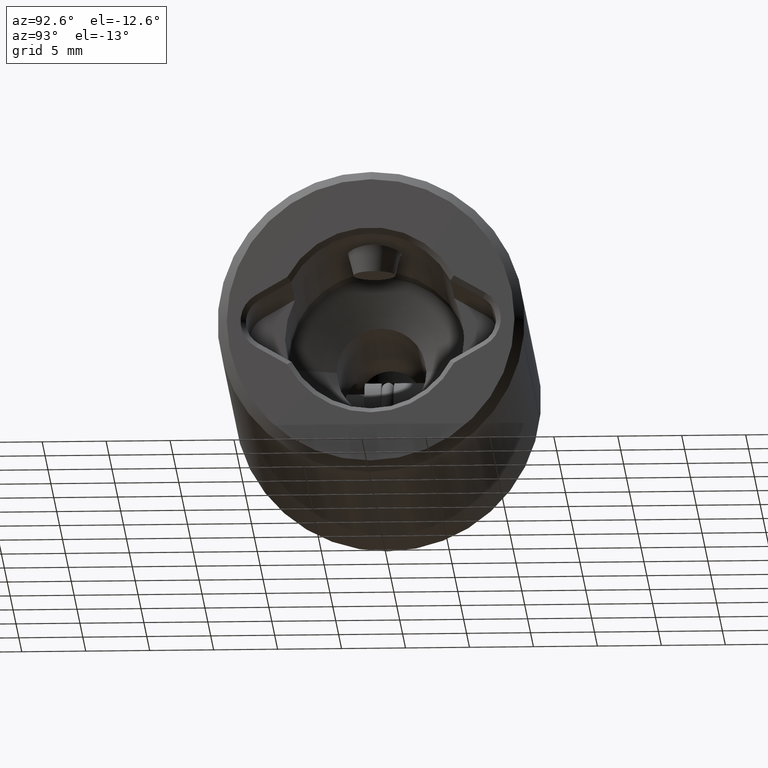
[diagram: clean part render]
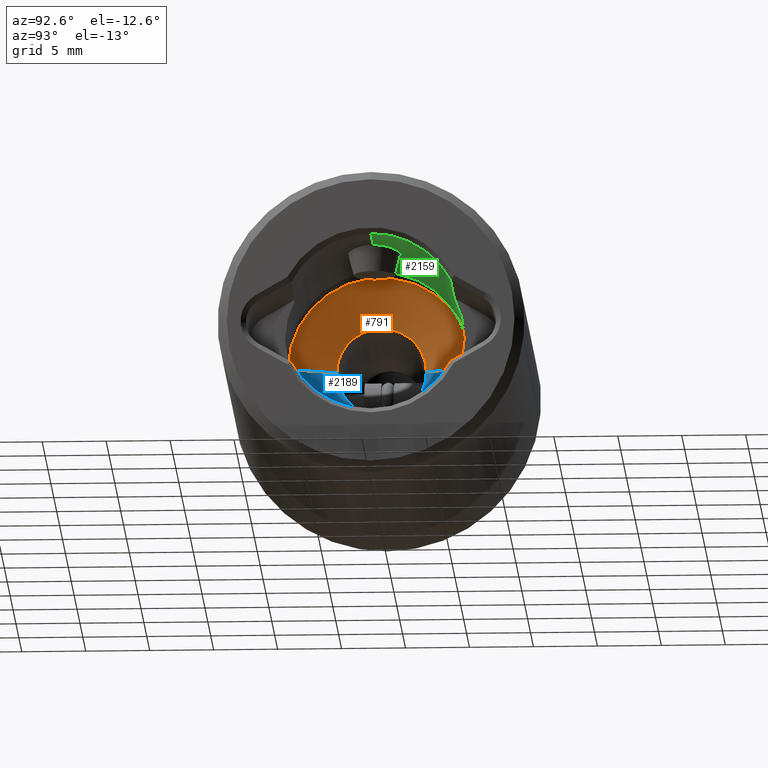
[diagram: same view with three faces highlighted in distinct colors, each labeled with its STEP entity id]
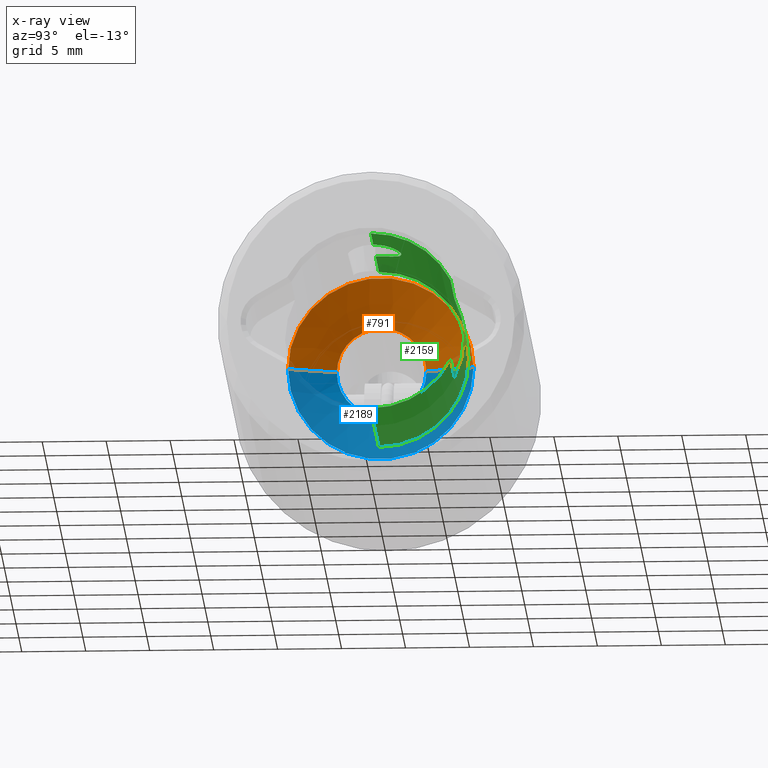
[diagram: x-ray of the same camera — body ghosted, the three highlighted faces saturated]
A machine part, auxiliary view with three faces highlighted in distinct colors.
The next image is the same camera in x-ray (body ghosted, the three faces saturated) — at least one of them is partly hidden behind the body in this view.
Their STEP definitions:

[orange] entity #791 — the highlighted conical surface has half-angle 70 deg.
#121 = VERTEX_POINT ( 'NONE', #3998 ) ;
#237 = EDGE_CURVE ( 'NONE', #1329, #2908, #3725, .T. ) ;
#268 = EDGE_CURVE ( 'NONE', #991, #275, #1883, .T. ) ;
#275 = VERTEX_POINT ( 'NONE', #986 ) ;
#324 = LINE ( 'NONE', #1284, #1061 ) ;
#358 = CARTESIAN_POINT ( 'NONE',  ( 0.0000000000000000000, 7.249999999999998200, 17.50000000000000000 ) ) ;
#623 = DIRECTION ( 'NONE',  ( 0.0000000000000000000, -4.148317104405457400E-017, -1.000000000000000000 ) ) ;
#791 = ADVANCED_FACE ( 'NONE', ( #930 ), #3293, .F. ) ;
#899 = DIRECTION ( 'NONE',  ( 0.0000000000000000000, -1.000000000000000000, 0.0000000000000000000 ) ) ;
#914 = DIRECTION ( 'NONE',  ( 0.0000000000000000000, 4.148317104405457400E-017, 1.000000000000000000 ) ) ;
#925 = DIRECTION ( 'NONE',  ( 1.150791560227852700E-016, -0.9396926207859104300, -0.3420201433256629400 ) ) ;
#930 = FACE_OUTER_BOUND ( 'NONE', #3781, .T. ) ;
#931 = CARTESIAN_POINT ( 'NONE',  ( 0.0000000000000000000, -2.136345753203781900E-015, 17.50000000000000000 ) ) ;
#986 = CARTESIAN_POINT ( 'NONE',  ( 0.0000000000000000000, 7.249999999999999100, 17.50000000000000000 ) ) ;
#991 = VERTEX_POINT ( 'NONE', #1886 ) ;
#1061 = VECTOR ( 'NONE', #925, 1000.000000000000200 ) ;
#1110 = VECTOR ( 'NONE', #2980, 1000.000000000000200 ) ;
#1279 = DIRECTION ( 'NONE',  ( 0.0000000000000000000, 1.000000000000000000, 0.0000000000000000000 ) ) ;
#1284 = CARTESIAN_POINT ( 'NONE',  ( 8.878689293818310100E-016, -7.250000000000001800, 17.50000000000000000 ) ) ;
#1320 = DIRECTION ( 'NONE',  ( 0.0000000000000000000, -4.148317104405457400E-017, -1.000000000000000000 ) ) ;
#1329 = VERTEX_POINT ( 'NONE', #3953 ) ;
#1338 = EDGE_CURVE ( 'NONE', #121, #275, #2025, .T. ) ;
#1349 = CARTESIAN_POINT ( 'NONE',  ( 0.0000000000000000000, -2.079725855142497400E-015, 18.86488837849823600 ) ) ;
#1351 = AXIS2_PLACEMENT_3D ( 'NONE', #2615, #623, #2950 ) ;
#1855 = DIRECTION ( 'NONE',  ( 0.0000000000000000000, -4.148317104405457400E-017, -1.000000000000000000 ) ) ;
#1859 = AXIS2_PLACEMENT_3D ( 'NONE', #2543, #1855, #2863 ) ;
#1883 = CIRCLE ( 'NONE', #3786, 7.250000000000000000 ) ;
#1886 = CARTESIAN_POINT ( 'NONE',  ( 8.878689293818308100E-016, -7.250000000000000900, 17.50000000000000000 ) ) ;
#2025 = LINE ( 'NONE', #358, #1110 ) ;
#2543 = CARTESIAN_POINT ( 'NONE',  ( 0.0000000000000000000, -2.136345753203781900E-015, 17.50000000000000000 ) ) ;
#2563 = EDGE_CURVE ( 'NONE', #121, #1329, #3237, .T. ) ;
#2615 = CARTESIAN_POINT ( 'NONE',  ( 0.0000000000000000000, -2.079725855142497400E-015, 18.86488837849823600 ) ) ;
#2863 = DIRECTION ( 'NONE',  ( 0.0000000000000000000, 1.000000000000000000, 0.0000000000000000000 ) ) ;
#2886 = ORIENTED_EDGE ( 'NONE', *, *, #1338, .T. ) ;
#2908 = VERTEX_POINT ( 'NONE', #3333 ) ;
#2939 = AXIS2_PLACEMENT_3D ( 'NONE', #1349, #1320, #1279 ) ;
#2950 = DIRECTION ( 'NONE',  ( 0.0000000000000000000, 1.000000000000000000, 0.0000000000000000000 ) ) ;
#2980 = DIRECTION ( 'NONE',  ( 0.0000000000000000000, 0.9396926207859104300, -0.3420201433256630500 ) ) ;
#3041 = ORIENTED_EDGE ( 'NONE', *, *, #237, .F. ) ;
#3232 = ORIENTED_EDGE ( 'NONE', *, *, #2563, .F. ) ;
#3237 = CIRCLE ( 'NONE', #1351, 3.500000000000000000 ) ;
#3293 = CONICAL_SURFACE ( 'NONE', #1859, 7.250000000000000000, 1.221730476396036800 ) ;
#3333 = CARTESIAN_POINT ( 'NONE',  ( 6.582476545417023100E-016, -3.500000000000002200, 18.86488837849823600 ) ) ;
#3541 = EDGE_CURVE ( 'NONE', #2908, #991, #324, .T. ) ;
#3617 = ORIENTED_EDGE ( 'NONE', *, *, #3541, .F. ) ;
#3725 = CIRCLE ( 'NONE', #2939, 3.500000000000000000 ) ;
#3781 = EDGE_LOOP ( 'NONE', ( #3617, #3041, #3232, #2886, #4113 ) ) ;
#3786 = AXIS2_PLACEMENT_3D ( 'NONE', #931, #914, #899 ) ;
#3953 = CARTESIAN_POINT ( 'NONE',  ( 3.500000000000000000, 0.0000000000000000000, 18.86488837849823600 ) ) ;
#3998 = CARTESIAN_POINT ( 'NONE',  ( 0.0000000000000000000, 3.499999999999997800, 18.86488837849823600 ) ) ;
#4113 = ORIENTED_EDGE ( 'NONE', *, *, #268, .F. ) ;

[blue] entity #2189 — the highlighted conical surface has half-angle 70 deg.
#100 = ORIENTED_EDGE ( 'NONE', *, *, #2733, .F. ) ;
#121 = VERTEX_POINT ( 'NONE', #3998 ) ;
#125 = CIRCLE ( 'NONE', #463, 3.500000000000000000 ) ;
#210 = DIRECTION ( 'NONE',  ( 0.0000000000000000000, 1.000000000000000000, 0.0000000000000000000 ) ) ;
#252 = DIRECTION ( 'NONE',  ( 0.0000000000000000000, -4.148317104405457400E-017, -1.000000000000000000 ) ) ;
#275 = VERTEX_POINT ( 'NONE', #986 ) ;
#324 = LINE ( 'NONE', #1284, #1061 ) ;
#358 = CARTESIAN_POINT ( 'NONE',  ( 0.0000000000000000000, 7.249999999999998200, 17.50000000000000000 ) ) ;
#463 = AXIS2_PLACEMENT_3D ( 'NONE', #860, #252, #210 ) ;
#809 = DIRECTION ( 'NONE',  ( 0.0000000000000000000, -4.148317104405457400E-017, -1.000000000000000000 ) ) ;
#823 = CONICAL_SURFACE ( 'NONE', #3519, 7.250000000000000000, 1.221730476396036800 ) ;
#860 = CARTESIAN_POINT ( 'NONE',  ( 0.0000000000000000000, -2.079725855142497400E-015, 18.86488837849823600 ) ) ;
#925 = DIRECTION ( 'NONE',  ( 1.150791560227852700E-016, -0.9396926207859104300, -0.3420201433256629400 ) ) ;
#936 = FACE_OUTER_BOUND ( 'NONE', #2819, .T. ) ;
#956 = CIRCLE ( 'NONE', #3978, 3.500000000000000000 ) ;
#986 = CARTESIAN_POINT ( 'NONE',  ( 0.0000000000000000000, 7.249999999999999100, 17.50000000000000000 ) ) ;
#991 = VERTEX_POINT ( 'NONE', #1886 ) ;
#1028 = DIRECTION ( 'NONE',  ( 0.0000000000000000000, -4.148317104405457400E-017, -1.000000000000000000 ) ) ;
#1059 = EDGE_CURVE ( 'NONE', #3406, #121, #125, .T. ) ;
#1061 = VECTOR ( 'NONE', #925, 1000.000000000000200 ) ;
#1110 = VECTOR ( 'NONE', #2980, 1000.000000000000200 ) ;
#1284 = CARTESIAN_POINT ( 'NONE',  ( 8.878689293818310100E-016, -7.250000000000001800, 17.50000000000000000 ) ) ;
#1338 = EDGE_CURVE ( 'NONE', #121, #275, #2025, .T. ) ;
#1386 = DIRECTION ( 'NONE',  ( 0.0000000000000000000, 1.000000000000000000, 0.0000000000000000000 ) ) ;
#1536 = CARTESIAN_POINT ( 'NONE',  ( -3.500000000000000000, 4.286263797015734600E-016, 18.86488837849823600 ) ) ;
#1545 = EDGE_CURVE ( 'NONE', #2908, #3406, #956, .T. ) ;
#1583 = CARTESIAN_POINT ( 'NONE',  ( 0.0000000000000000000, -2.136345753203781900E-015, 17.50000000000000000 ) ) ;
#1886 = CARTESIAN_POINT ( 'NONE',  ( 8.878689293818308100E-016, -7.250000000000000900, 17.50000000000000000 ) ) ;
#1907 = DIRECTION ( 'NONE',  ( 0.0000000000000000000, -1.000000000000000000, 0.0000000000000000000 ) ) ;
#2025 = LINE ( 'NONE', #358, #1110 ) ;
#2189 = ADVANCED_FACE ( 'NONE', ( #936 ), #823, .F. ) ;
#2247 = AXIS2_PLACEMENT_3D ( 'NONE', #1583, #3869, #1907 ) ;
#2371 = ORIENTED_EDGE ( 'NONE', *, *, #1059, .F. ) ;
#2733 = EDGE_CURVE ( 'NONE', #275, #991, #3131, .T. ) ;
#2752 = ORIENTED_EDGE ( 'NONE', *, *, #1338, .F. ) ;
#2815 = CARTESIAN_POINT ( 'NONE',  ( 0.0000000000000000000, -2.079725855142497400E-015, 18.86488837849823600 ) ) ;
#2819 = EDGE_LOOP ( 'NONE', ( #3836, #3291, #100, #2752, #2371 ) ) ;
#2908 = VERTEX_POINT ( 'NONE', #3333 ) ;
#2980 = DIRECTION ( 'NONE',  ( 0.0000000000000000000, 0.9396926207859104300, -0.3420201433256630500 ) ) ;
#3131 = CIRCLE ( 'NONE', #2247, 7.250000000000000000 ) ;
#3153 = DIRECTION ( 'NONE',  ( 0.0000000000000000000, 1.000000000000000000, 0.0000000000000000000 ) ) ;
#3291 = ORIENTED_EDGE ( 'NONE', *, *, #3541, .T. ) ;
#3333 = CARTESIAN_POINT ( 'NONE',  ( 6.582476545417023100E-016, -3.500000000000002200, 18.86488837849823600 ) ) ;
#3406 = VERTEX_POINT ( 'NONE', #1536 ) ;
#3519 = AXIS2_PLACEMENT_3D ( 'NONE', #3679, #1028, #1386 ) ;
#3541 = EDGE_CURVE ( 'NONE', #2908, #991, #324, .T. ) ;
#3679 = CARTESIAN_POINT ( 'NONE',  ( 0.0000000000000000000, -2.136345753203781900E-015, 17.50000000000000000 ) ) ;
#3836 = ORIENTED_EDGE ( 'NONE', *, *, #1545, .F. ) ;
#3869 = DIRECTION ( 'NONE',  ( 0.0000000000000000000, 4.148317104405457400E-017, 1.000000000000000000 ) ) ;
#3978 = AXIS2_PLACEMENT_3D ( 'NONE', #2815, #809, #3153 ) ;
#3998 = CARTESIAN_POINT ( 'NONE',  ( 0.0000000000000000000, 3.499999999999997800, 18.86488837849823600 ) ) ;

[green] entity #2159 — the highlighted cylindrical surface (partial cylindrical patch) has radius 7 mm, axis along (1, 0, 0).
#23 = EDGE_CURVE ( 'NONE', #3122, #754, #1942, .T. ) ;
#37 = LINE ( 'NONE', #3896, #1575 ) ;
#86 = CYLINDRICAL_SURFACE ( 'NONE', #3731, 7.000000000000000000 ) ;
#91 = CARTESIAN_POINT ( 'NONE',  ( 7.000000000000001800, 0.1396186699017871700, 4.450000000000001100 ) ) ;
#99 = CARTESIAN_POINT ( 'NONE',  ( 6.921089821993092500, 1.054442023925435100, 4.728758008423139500 ) ) ;
#113 = CARTESIAN_POINT ( 'NONE',  ( 6.756624778875123900, 1.833088423576224100, 7.611227829950864900 ) ) ;
#140 = CARTESIAN_POINT ( 'NONE',  ( -7.000000000000000000, 0.0000000000000000000, 0.4000000000000010200 ) ) ;
#180 = FACE_OUTER_BOUND ( 'NONE', #4124, .T. ) ;
#211 = CARTESIAN_POINT ( 'NONE',  ( 0.0000000000000000000, 0.0000000000000000000, 0.4000000000000010200 ) ) ;
#215 = CIRCLE ( 'NONE', #3903, 7.000000000000000000 ) ;
#279 = CARTESIAN_POINT ( 'NONE',  ( 7.000000000000000000, 8.572527594031473200E-016, 17.50000000000000000 ) ) ;
#379 = EDGE_CURVE ( 'NONE', #4146, #3716, #1780, .T. ) ;
#424 = CARTESIAN_POINT ( 'NONE',  ( 0.0000000000000000000, -2.271166059096959500E-015, 14.24999999999999800 ) ) ;
#427 = CARTESIAN_POINT ( 'NONE',  ( 7.000000000000000000, 1.203327826047149900E-016, 4.450000000000001100 ) ) ;
#439 = CARTESIAN_POINT ( 'NONE',  ( 6.861461030826726300, 1.389261821100216100, 4.969340607373350600 ) ) ;
#454 = CARTESIAN_POINT ( 'NONE',  ( 6.861829006825477300, 1.387495214371584600, 8.132289558008780600 ) ) ;
#547 = DIRECTION ( 'NONE',  ( 1.000000000000000000, 0.0000000000000000000, 0.0000000000000000000 ) ) ;
#552 = CARTESIAN_POINT ( 'NONE',  ( 7.000000000000000000, 8.572527594031473200E-016, 17.50000000000000000 ) ) ;
#559 = CIRCLE ( 'NONE', #1700, 7.000000000000000000 ) ;
#611 = DIRECTION ( 'NONE',  ( 0.0000000000000000000, 0.0000000000000000000, -1.000000000000000000 ) ) ;
#635 = ORIENTED_EDGE ( 'NONE', *, *, #858, .T. ) ;
#697 = ORIENTED_EDGE ( 'NONE', *, *, #1608, .T. ) ;
#707 = DIRECTION ( 'NONE',  ( 0.0000000000000000000, 0.0000000000000000000, -1.000000000000000000 ) ) ;
#721 = DIRECTION ( 'NONE',  ( -0.0000000000000000000, -4.148317104405457400E-017, -1.000000000000000000 ) ) ;
#732 = DIRECTION ( 'NONE',  ( -8.881784197001252300E-016, -1.000000000000000000, 0.0000000000000000000 ) ) ;
#744 = CARTESIAN_POINT ( 'NONE',  ( 6.756358450323677500, 1.833999244569565200, 5.491158574040686500 ) ) ;
#747 = CARTESIAN_POINT ( 'NONE',  ( 6.920941585415814500, 1.055372899150519100, 8.370670769413999700 ) ) ;
#754 = VERTEX_POINT ( 'NONE', #1528 ) ;
#841 = DIRECTION ( 'NONE',  ( 0.0000000000000000000, 0.0000000000000000000, -1.000000000000000000 ) ) ;
#858 = EDGE_CURVE ( 'NONE', #3122, #2310, #1417, .T. ) ;
#877 = VECTOR ( 'NONE', #1253, 1000.000000000000000 ) ;
#943 = CARTESIAN_POINT ( 'NONE',  ( -3.205490311578183900, 6.222927917176801500, 17.50000000000000000 ) ) ;
#947 = CARTESIAN_POINT ( 'NONE',  ( -3.205490311578184800, 6.222927917176799700, 6.899999999999999500 ) ) ;
#1009 = AXIS2_PLACEMENT_3D ( 'NONE', #1098, #721, #3835 ) ;
#1070 = CARTESIAN_POINT ( 'NONE',  ( 6.698580547748195000, 2.032196730578194300, 6.002883975917211700 ) ) ;
#1075 = VERTEX_POINT ( 'NONE', #1869 ) ;
#1082 = CARTESIAN_POINT ( 'NONE',  ( 6.968135792543013600, 0.6792063117896762800, 8.541850286279567300 ) ) ;
#1090 = EDGE_CURVE ( 'NONE', #2995, #3397, #3722, .T. ) ;
#1098 = CARTESIAN_POINT ( 'NONE',  ( 0.0000000000000000000, -2.271166059096959500E-015, 14.24999999999999800 ) ) ;
#1173 = DIRECTION ( 'NONE',  ( -0.0000000000000000000, -0.0000000000000000000, -1.000000000000000000 ) ) ;
#1191 = CARTESIAN_POINT ( 'NONE',  ( 7.000000000000000000, 8.572339082806839800E-016, 8.649999999999998600 ) ) ;
#1205 = DIRECTION ( 'NONE',  ( 0.0000000000000000000, 0.0000000000000000000, -1.000000000000000000 ) ) ;
#1234 = VERTEX_POINT ( 'NONE', #947 ) ;
#1253 = DIRECTION ( 'NONE',  ( 0.0000000000000000000, 0.0000000000000000000, -1.000000000000000000 ) ) ;
#1300 = DIRECTION ( 'NONE',  ( -0.0000000000000000000, -0.0000000000000000000, 1.000000000000000000 ) ) ;
#1417 = LINE ( 'NONE', #3206, #3935 ) ;
#1428 = CARTESIAN_POINT ( 'NONE',  ( 6.677594381981389700, 2.099936492880630600, 6.411163498204289500 ) ) ;
#1436 = CARTESIAN_POINT ( 'NONE',  ( 6.995839517209377700, 0.2769281027931637700, 8.636251401930765700 ) ) ;
#1443 = ORIENTED_EDGE ( 'NONE', *, *, #1090, .F. ) ;
#1491 = CARTESIAN_POINT ( 'NONE',  ( 7.000000000000000000, 1.203327826047149900E-016, 4.450000000000001100 ) ) ;
#1513 = VERTEX_POINT ( 'NONE', #2787 ) ;
#1528 = CARTESIAN_POINT ( 'NONE',  ( 8.725608443924891100E-016, 6.999999999999997300, 14.24999999999999800 ) ) ;
#1563 = CARTESIAN_POINT ( 'NONE',  ( 0.0000000000000000000, 0.0000000000000000000, 6.899999999999999500 ) ) ;
#1575 = VECTOR ( 'NONE', #611, 1000.000000000000000 ) ;
#1604 = CIRCLE ( 'NONE', #3488, 7.000000000000000000 ) ;
#1608 = EDGE_CURVE ( 'NONE', #1075, #3716, #559, .T. ) ;
#1700 = AXIS2_PLACEMENT_3D ( 'NONE', #3179, #1173, #3493 ) ;
#1710 = CIRCLE ( 'NONE', #3118, 7.000000000000000000 ) ;
#1742 = ORIENTED_EDGE ( 'NONE', *, *, #2233, .T. ) ;
#1747 = CARTESIAN_POINT ( 'NONE',  ( 6.979957106523280600, 0.5462817998686548800, 4.517645823486415900 ) ) ;
#1759 = CARTESIAN_POINT ( 'NONE',  ( 6.681958156876654600, 2.086200852298722100, 6.826989819433118900 ) ) ;
#1770 = CARTESIAN_POINT ( 'NONE',  ( 7.000000000000000000, 8.572339082806839800E-016, 8.649999999999998600 ) ) ;
#1780 = LINE ( 'NONE', #279, #877 ) ;
#1869 = CARTESIAN_POINT ( 'NONE',  ( 3.205490311578184300, 6.222927917176801500, 0.3999999999999975800 ) ) ;
#1895 = DIRECTION ( 'NONE',  ( -1.000000000000000000, -1.776356839400250500E-015, 0.0000000000000000000 ) ) ;
#1942 = CIRCLE ( 'NONE', #1009, 7.000000000000000000 ) ;
#2083 = CARTESIAN_POINT ( 'NONE',  ( 6.938571942145756600, 0.9341117162047103400, 4.664168989201591800 ) ) ;
#2088 = ORIENTED_EDGE ( 'NONE', *, *, #3388, .T. ) ;
#2098 = CARTESIAN_POINT ( 'NONE',  ( 6.710742842758151000, 1.992229502632753000, 7.228325900852661700 ) ) ;
#2159 = ADVANCED_FACE ( 'NONE', ( #180 ), #86, .F. ) ;
#2233 = EDGE_CURVE ( 'NONE', #4146, #3397, #3800, .T. ) ;
#2310 = VERTEX_POINT ( 'NONE', #140 ) ;
#2419 = CARTESIAN_POINT ( 'NONE',  ( 6.882547794946126500, 1.282134219260443200, 4.881197370117058100 ) ) ;
#2426 = CARTESIAN_POINT ( 'NONE',  ( 6.798720341831535800, 1.678321443832560900, 7.841653975459934100 ) ) ;
#2520 = DIRECTION ( 'NONE',  ( -0.0000000000000000000, -0.0000000000000000000, -1.000000000000000000 ) ) ;
#2584 = EDGE_CURVE ( 'NONE', #2776, #1075, #37, .T. ) ;
#2712 = CARTESIAN_POINT ( 'NONE',  ( 0.0000000000000000000, 0.0000000000000000000, 17.50000000000000000 ) ) ;
#2739 = DIRECTION ( 'NONE',  ( -0.0000000000000000000, -4.148317104405457400E-017, -1.000000000000000000 ) ) ;
#2750 = CARTESIAN_POINT ( 'NONE',  ( 6.798772840648841700, 1.677936650096603500, 5.258234274132974000 ) ) ;
#2760 = ORIENTED_EDGE ( 'NONE', *, *, #3949, .F. ) ;
#2765 = CARTESIAN_POINT ( 'NONE',  ( 6.882508658577497100, 1.282310005265935300, 8.218632690934352800 ) ) ;
#2776 = VERTEX_POINT ( 'NONE', #3267 ) ;
#2787 = CARTESIAN_POINT ( 'NONE',  ( -3.205490311578183900, 6.222927917176801500, 0.3999999999999975800 ) ) ;
#2862 = ORIENTED_EDGE ( 'NONE', *, *, #3047, .F. ) ;
#2868 = CARTESIAN_POINT ( 'NONE',  ( 7.000000000000000000, 8.572527594031473200E-016, 14.24999999999999800 ) ) ;
#2919 = ORIENTED_EDGE ( 'NONE', *, *, #379, .F. ) ;
#2977 = ORIENTED_EDGE ( 'NONE', *, *, #23, .F. ) ;
#2995 = VERTEX_POINT ( 'NONE', #2868 ) ;
#3043 = DIRECTION ( 'NONE',  ( -1.000000000000000000, 0.0000000000000000000, 0.0000000000000000000 ) ) ;
#3047 = EDGE_CURVE ( 'NONE', #2776, #1234, #215, .T. ) ;
#3081 = CARTESIAN_POINT ( 'NONE',  ( 6.710971334777095600, 1.991443428366877800, 5.869685609282962300 ) ) ;
#3094 = CARTESIAN_POINT ( 'NONE',  ( 6.938798960566544800, 0.9323661416710769000, 8.436658992714987100 ) ) ;
#3106 = VECTOR ( 'NONE', #1300, 1000.000000000000000 ) ;
#3118 = AXIS2_PLACEMENT_3D ( 'NONE', #424, #2739, #732 ) ;
#3122 = VERTEX_POINT ( 'NONE', #3664 ) ;
#3179 = CARTESIAN_POINT ( 'NONE',  ( 0.0000000000000000000, 0.0000000000000000000, 0.4000000000000010200 ) ) ;
#3206 = CARTESIAN_POINT ( 'NONE',  ( -7.000000000000000000, 0.0000000000000000000, 17.50000000000000000 ) ) ;
#3242 = CARTESIAN_POINT ( 'NONE',  ( 7.000000000000000000, 8.572527594031473200E-016, 0.4000000000000010200 ) ) ;
#3267 = CARTESIAN_POINT ( 'NONE',  ( 3.205490311578185200, 6.222927917176801500, 6.899999999999999500 ) ) ;
#3388 = EDGE_CURVE ( 'NONE', #2310, #1513, #1604, .T. ) ;
#3397 = VERTEX_POINT ( 'NONE', #1191 ) ;
#3402 = CARTESIAN_POINT ( 'NONE',  ( 6.681887838270702300, 2.086427526470382400, 6.274355895460205400 ) ) ;
#3416 = CARTESIAN_POINT ( 'NONE',  ( 6.979824400763116700, 0.5481888900522657900, 8.581901332987888200 ) ) ;
#3425 = VECTOR ( 'NONE', #841, 1000.000000000000000 ) ;
#3488 = AXIS2_PLACEMENT_3D ( 'NONE', #211, #2520, #547 ) ;
#3493 = DIRECTION ( 'NONE',  ( 1.000000000000000000, -8.881784197001252300E-016, 0.0000000000000000000 ) ) ;
#3557 = ORIENTED_EDGE ( 'NONE', *, *, #3762, .T. ) ;
#3664 = CARTESIAN_POINT ( 'NONE',  ( -7.000000000000000000, 0.0000000000000000000, 14.24999999999999800 ) ) ;
#3681 = ORIENTED_EDGE ( 'NONE', *, *, #2584, .T. ) ;
#3704 = CARTESIAN_POINT ( 'NONE',  ( 6.995829842895406400, 0.2767486640014969500, 4.463783932418953900 ) ) ;
#3714 = CARTESIAN_POINT ( 'NONE',  ( 6.677554577004119800, 2.100063064656057400, 6.686908629494585200 ) ) ;
#3716 = VERTEX_POINT ( 'NONE', #3242 ) ;
#3722 = LINE ( 'NONE', #552, #3425 ) ;
#3731 = AXIS2_PLACEMENT_3D ( 'NONE', #2712, #707, #3043 ) ;
#3733 = CARTESIAN_POINT ( 'NONE',  ( 6.999999999999999100, 0.1375748308212524400, 8.649999999999996800 ) ) ;
#3762 = EDGE_CURVE ( 'NONE', #1513, #1234, #3855, .T. ) ;
#3800 = B_SPLINE_CURVE_WITH_KNOTS ( 'NONE', 3,
 ( #427, #91, #3704, #1747, #4035, #2083, #99, #2419, #439, #2750, #744, #3081, #1070, #3402, #1428, #3714, #1759, #4045, #2098, #113, #2426, #454, #2765, #747, #3094, #1082, #3416, #1436, #3733, #1770 ),
 .UNSPECIFIED., .F., .F.,
 ( 4, 2, 2, 2, 2, 2, 2, 2, 2, 2, 2, 2, 2, 2, 4 ),
 ( 1.168430372234387400E-019, 0.0004127377478123091400, 0.0008254754956246181600, 0.001238213243436927200, 0.001650950991249236300, 0.002476426486873851500, 0.002889164234686159900, 0.003301901982498467400, 0.003714639730310775400, 0.004127377478123082600, 0.004952852973747695100, 0.005365590721560000100, 0.005778328469372305000, 0.006191066217184609100, 0.006603803964996913200 ),
 .UNSPECIFIED. ) ;
#3835 = DIRECTION ( 'NONE',  ( 0.0000000000000000000, -1.000000000000000000, 0.0000000000000000000 ) ) ;
#3850 = DIRECTION ( 'NONE',  ( -0.0000000000000000000, -0.0000000000000000000, 1.000000000000000000 ) ) ;
#3855 = LINE ( 'NONE', #943, #3106 ) ;
#3896 = CARTESIAN_POINT ( 'NONE',  ( 3.205490311578184300, 6.222927917176801500, 17.50000000000000000 ) ) ;
#3903 = AXIS2_PLACEMENT_3D ( 'NONE', #1563, #3850, #1895 ) ;
#3935 = VECTOR ( 'NONE', #1205, 1000.000000000000000 ) ;
#3949 = EDGE_CURVE ( 'NONE', #754, #2995, #1710, .T. ) ;
#4035 = CARTESIAN_POINT ( 'NONE',  ( 6.968054429671038700, 0.6801196658126341700, 4.558427621246277500 ) ) ;
#4045 = CARTESIAN_POINT ( 'NONE',  ( 6.698586492012944800, 2.032175635963599600, 7.097009635013356500 ) ) ;
#4124 = EDGE_LOOP ( 'NONE', ( #1443, #2760, #2977, #635, #2088, #3557, #2862, #3681, #697, #2919, #1742 ) ) ;
#4146 = VERTEX_POINT ( 'NONE', #1491 ) ;